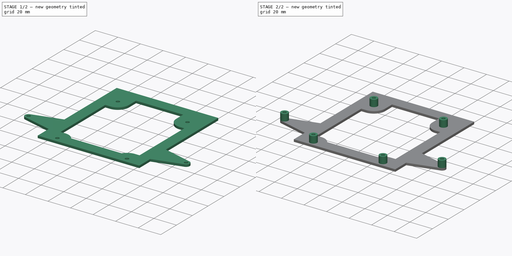
[diagram: build sequence overview — one tinted view per stage of 2, left to right]
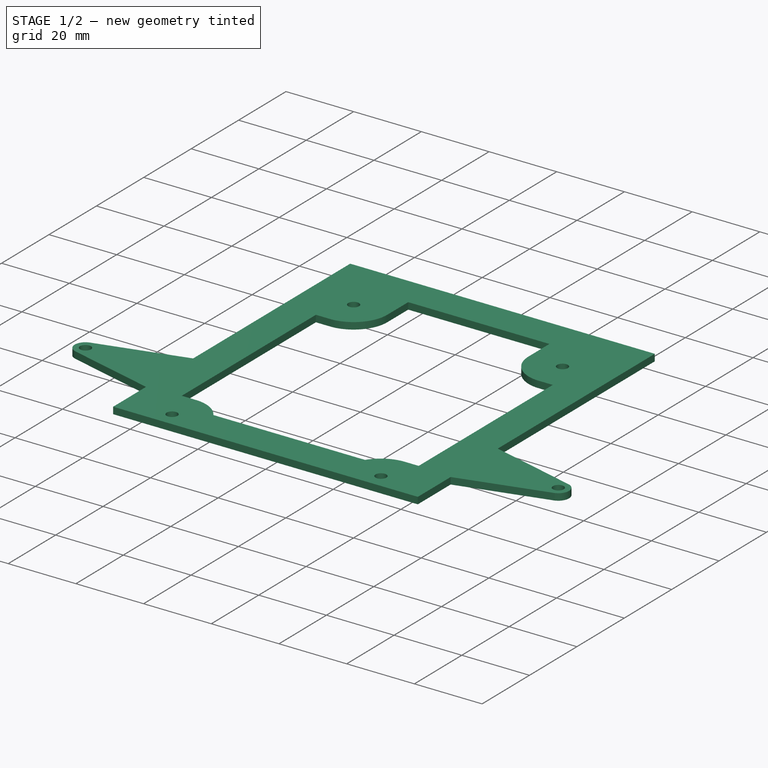
[diagram: stage 1 of 2 — iso view after this stage's code; geometry added in this stage tinted green]
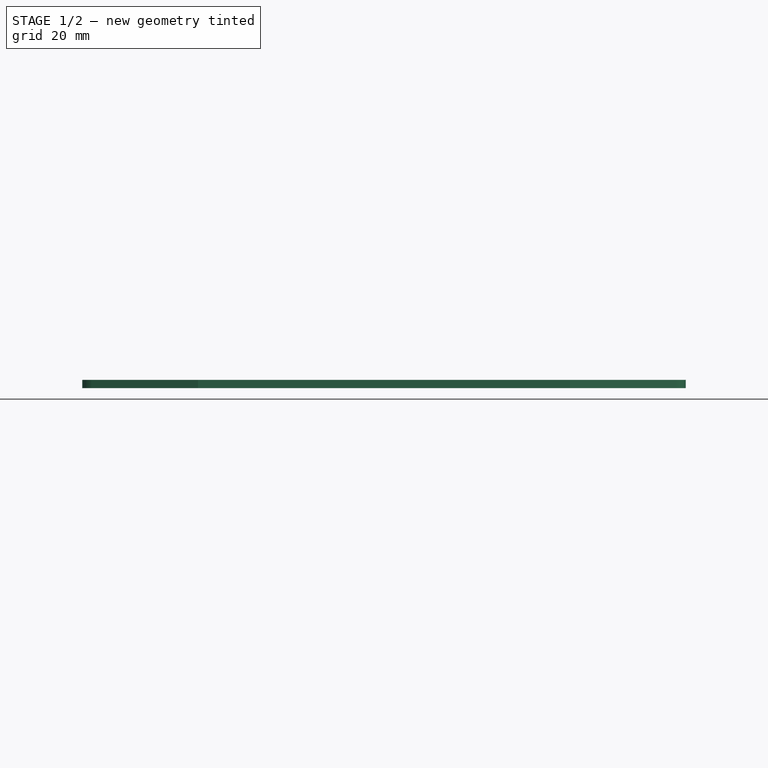
[diagram: stage 1 of 2 — front view after this stage's code; geometry added in this stage tinted green]
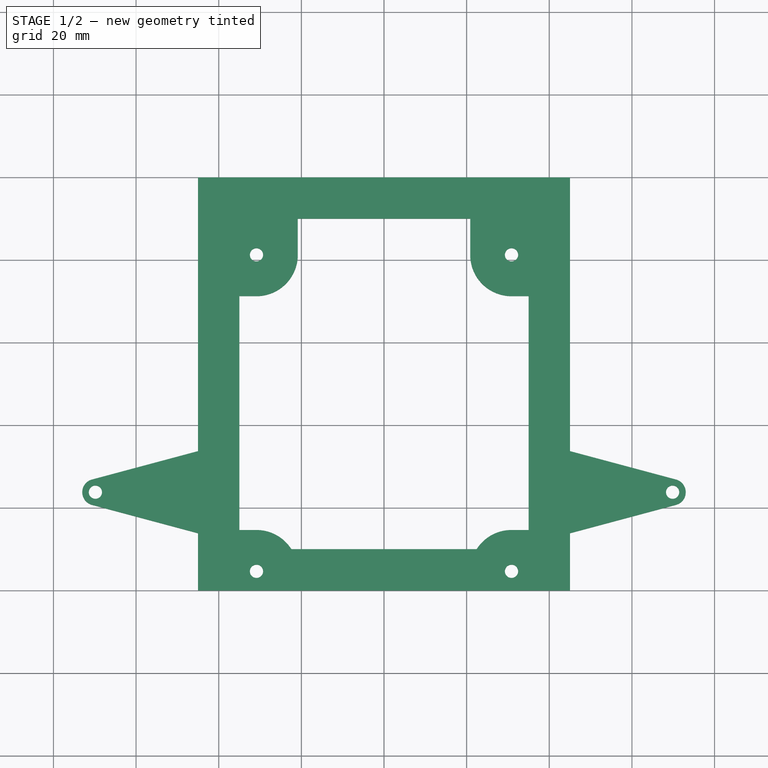
[diagram: stage 1 of 2 — top view after this stage's code; geometry added in this stage tinted green]
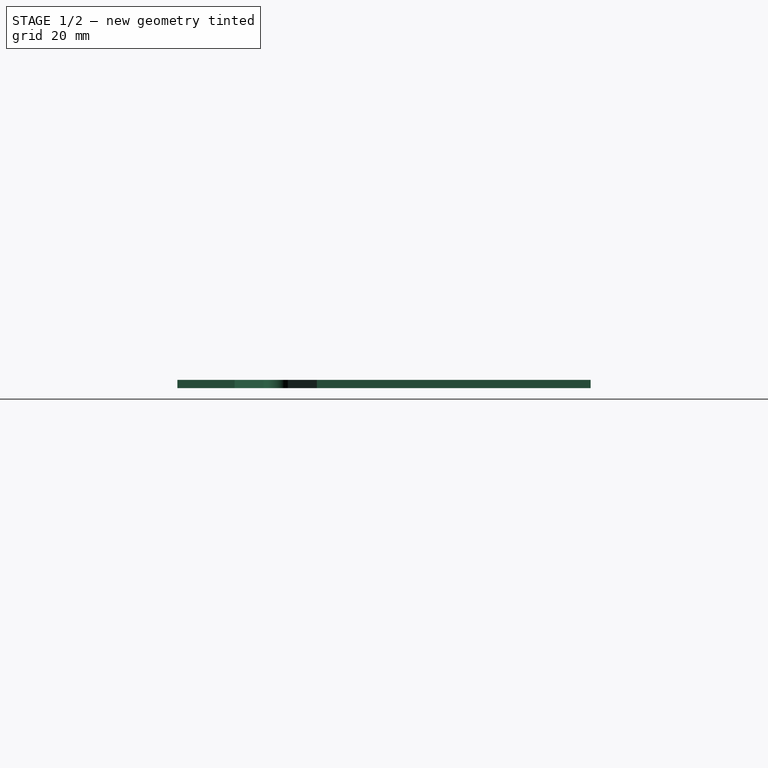
[diagram: stage 1 of 2 — right view after this stage's code; geometry added in this stage tinted green]
FCSTD DOCUMENT  (FreeCAD 0.17R13541 (Git))
Label: SCSI2SD_Mount
License: All rights reserved
LicenseURL: http://en.wikipedia.org/wiki/All_rights_reserved
objects: Sketcher::SketchObject×4, PartDesign::Pad×2, PartDesign::Body×1
note: 9 computed .brp shape members not serialized (recipe doc carries the construction recipe); baked Part::Feature solids carry a one-line shape summary decoded from their .brp

FEATURE [Sketcher::SketchObject] Sketch  label="SCSI2SD_Dimensions"
  MapMode = 5
  Support = -> [XY_Plane]
  sketch-geometry (12):
    g0: Circle CenterX=-30.86 CenterY=-18.75 CenterZ=0 NormalX=0 NormalY=0 NormalZ=1 AngleXU=0 Radius=1.6
    g1: Circle CenterX=-30.86 CenterY=-95.35 CenterZ=0 NormalX=0 NormalY=0 NormalZ=1 AngleXU=0 Radius=1.6
    g2: Circle CenterX=30.86 CenterY=-95.35 CenterZ=0 NormalX=0 NormalY=0 NormalZ=1 AngleXU=0 Radius=1.6
    g3: Circle CenterX=30.86 CenterY=-18.75 CenterZ=0 NormalX=0 NormalY=0 NormalZ=1 AngleXU=0 Radius=1.6
    g4: LineSegment [constr] StartX=-30.86 StartY=-18.75 StartZ=0 EndX=30.86 EndY=-18.75 EndZ=0
    g5: LineSegment [constr] StartX=30.86 StartY=-18.75 StartZ=0 EndX=30.86 EndY=-95.35 EndZ=0
    g6: LineSegment [constr] StartX=30.86 StartY=-95.35 StartZ=0 EndX=-30.86 EndY=-95.35 EndZ=0
    g7: LineSegment [constr] StartX=-30.86 StartY=-95.35 StartZ=0 EndX=-30.86 EndY=-18.75 EndZ=0
    g8: LineSegment StartX=-45 StartY=0 StartZ=0 EndX=45 EndY=0 EndZ=0
    g9: LineSegment StartX=45 StartY=0 StartZ=0 EndX=45 EndY=-100 EndZ=0
    g10: LineSegment StartX=45 StartY=-100 StartZ=0 EndX=-45 EndY=-100 EndZ=0
    g11: LineSegment StartX=-45 StartY=-100 StartZ=0 EndX=-45 EndY=0 EndZ=0
  constraints (31):
    c: Coincident(g4,g5)
    c: Coincident(g5,g6)
    c: Coincident(g6,g7)
    c: Coincident(g7,g4)
    c: Horizontal(g4)
    c: Horizontal(g6)
    c: Vertical(g5)
    c: Vertical(g7)
    c: Coincident(g4,g0)
    c: Coincident(g5,g2)
    c: Coincident(g3,g4)
    c: Coincident(g1,g6)
    c: DistanceY(g5,g5) = 76.6
    c: DistanceX(g4,g4) = 61.72
    c: Equal(g0,g3)
    c: Equal(g3,g2)
    c: Equal(g2,g1)
    c: Radius(g0) = 1.6  'SCSI2SD_Screw_ID'
    c: Coincident(g9,g10)
    c: Coincident(g10,g11)
    c: Coincident(g11,g8)
    c: Horizontal(g8)
    c: Horizontal(g10)
    c: Vertical(g9)
    c: Vertical(g11)
    c: DistanceX(g8,g8) = 90  'Width'
    c: DistanceY(g9,g9) = 100  'Length'
    c: DistanceY(g3,g8) = 18.75
    c: DistanceX(g10,g1) = 14.14
    c: Coincident(g9,g8)
    c: Symmetric(g8,g8,g-1)
FEATURE [Sketcher::SketchObject] Sketch001  label="SCSI_Dimensions"
  MapMode = 5
  Support = -> [XY_Plane]
  sketch-geometry (14):
    g0: LineSegment StartX=73.025 StartY=0 StartZ=0 EndX=-73.025 EndY=0 EndZ=0
    g1: LineSegment StartX=-73.025 StartY=0 StartZ=0 EndX=-73.025 EndY=-203 EndZ=0
    g2: LineSegment StartX=-73.025 StartY=-203 StartZ=0 EndX=73.025 EndY=-203 EndZ=0
    g3: LineSegment StartX=73.025 StartY=-203 StartZ=0 EndX=73.025 EndY=0 EndZ=0
    g4: LineSegment [constr] StartX=-69.85 StartY=-76.2 StartZ=0 EndX=69.85 EndY=-76.2 EndZ=0
    g5: LineSegment [constr] StartX=69.85 StartY=-76.2 StartZ=0 EndX=69.85 EndY=-155.5 EndZ=0
    g6: LineSegment [constr] StartX=69.85 StartY=-155.5 StartZ=0 EndX=-69.85 EndY=-155.5 EndZ=0
    g7: LineSegment [constr] StartX=-69.85 StartY=-155.5 StartZ=0 EndX=-69.85 EndY=-76.2 EndZ=0
    g8: Circle CenterX=-69.85 CenterY=-76.2 CenterZ=0 NormalX=0 NormalY=0 NormalZ=1 AngleXU=0 Radius=1.6
    g9: Circle CenterX=69.85 CenterY=-76.2 CenterZ=0 NormalX=0 NormalY=0 NormalZ=1 AngleXU=0 Radius=1.6
    g10: Circle CenterX=69.85 CenterY=-155.5 CenterZ=0 NormalX=0 NormalY=0 NormalZ=1 AngleXU=0 Radius=1.6
    g11: Circle CenterX=-69.85 CenterY=-155.5 CenterZ=0 NormalX=0 NormalY=0 NormalZ=1 AngleXU=0 Radius=1.6
    g12: LineSegment [constr] StartX=69.85 StartY=-76.2 StartZ=0 EndX=73.025 EndY=-76.2 EndZ=0
    g13: LineSegment [constr] StartX=-69.85 StartY=-76.2 StartZ=0 EndX=-73.025 EndY=-76.2 EndZ=0
  constraints (38):
    c: Coincident(g0,g1)
    c: Coincident(g1,g2)
    c: Coincident(g2,g3)
    c: Horizontal(g0)
    c: Horizontal(g2)
    c: Vertical(g1)
    c: Vertical(g3)
    c: DistanceY(g3,g3) = 203  'Length'
    c: DistanceX(g0,g0) = 146.05  'Width'
    c: Coincident(g4,g5)
    c: Coincident(g5,g6)
    c: Coincident(g6,g7)
    c: Coincident(g7,g4)
    c: Horizontal(g4)
    c: Horizontal(g6)
    c: Vertical(g5)
    c: Vertical(g7)
    c: Coincident(g8,g4)
    c: Coincident(g9,g4)
    c: Coincident(g10,g5)
    c: Coincident(g11,g6)
    c: Equal(g8,g9)
    c: Equal(g9,g10)
    c: Equal(g10,g11)
    c: Radius(g8) = 1.6  'Screw_ID'
    c: DistanceX(g4,g4) = 139.7
    c: DistanceY(g5,g5) = 79.3
    c: DistanceY(g2,g5) = 47.5
    c: Coincident(g12,g4)
    c: PointOnObject(g12,g3)
    c: Horizontal(g12)
    c: Coincident(g13,g4)
    c: PointOnObject(g13,g1)
    c: Horizontal(g13)
    c: Equal(g13,g12)
    c: Coincident(g0,g3)
    c: Symmetric(g0,g0,g-1)
    c: DistanceX(g1,g6) = 3.175  'Screw_Hole_Offset'
FEATURE [Sketcher::SketchObject] Sketch002  label="Plate_Sketch"
  ExternalGeometry = -> [Sketch,Sketch001]
  MapMode = 2
  Placement = pos=(0,0,6) rot=(0,0,1;0rad)
  expr: Constraints[27] = Constraints.Wing_Angle
  expr: Constraints[70] = Constraints.Frame_Rim
  expr: Constraints[15] = SCSI_Dimensions.Constraints.Screw_Hole_Offset
  expr: Constraints[71] = Constraints.Frame_Rim
  expr: Constraints[75] = Constraints.Frame_Rim
  expr: Constraints[69] = Constraints.Frame_Rim
  sketch-geometry (32):
    g0: LineSegment StartX=-45 StartY=0 StartZ=0 EndX=45 EndY=0 EndZ=0
    g1: LineSegment StartX=-45 StartY=-100 StartZ=0 EndX=45 EndY=-100 EndZ=0
    g2: ArcOfCircle CenterX=-69.85 CenterY=-76.2 CenterZ=0 NormalX=0 NormalY=0 NormalZ=1 AngleXU=0 Radius=3.175 StartAngle=1.8326 EndAngle=4.45059
    g3: ArcOfCircle CenterX=69.85 CenterY=-76.2 CenterZ=0 NormalX=0 NormalY=0 NormalZ=1 AngleXU=0 Radius=3.175 StartAngle=4.97419 EndAngle=7.59218
    g4: LineSegment StartX=45 StartY=0 StartZ=0 EndX=45 EndY=-66.2545 EndZ=0
    g5: LineSegment StartX=-45 StartY=0 StartZ=0 EndX=-45 EndY=-66.2545 EndZ=0
    g6: LineSegment StartX=-45 StartY=-86.1455 StartZ=0 EndX=-70.6718 EndY=-79.2668 EndZ=0
    g7: LineSegment StartX=-70.6718 StartY=-73.1332 StartZ=0 EndX=-45 EndY=-66.2545 EndZ=0
    g8: LineSegment StartX=45 StartY=-66.2545 StartZ=0 EndX=70.6718 EndY=-73.1332 EndZ=0
    g9: LineSegment StartX=70.6718 StartY=-79.2668 StartZ=0 EndX=45 EndY=-86.1455 EndZ=0
    g10: LineSegment StartX=-45 StartY=-100 StartZ=0 EndX=-45 EndY=-86.1455 EndZ=0
    g11: LineSegment StartX=45 StartY=-100 StartZ=0 EndX=45 EndY=-86.1455 EndZ=0
    g12: Circle CenterX=-69.85 CenterY=-76.2 CenterZ=0 NormalX=0 NormalY=0 NormalZ=1 AngleXU=0 Radius=1.6
    g13: Circle CenterX=69.85 CenterY=-76.2 CenterZ=0 NormalX=0 NormalY=0 NormalZ=1 AngleXU=0 Radius=1.6
    g14: Circle CenterX=-30.86 CenterY=-18.75 CenterZ=0 NormalX=0 NormalY=0 NormalZ=1 AngleXU=0 Radius=1.6
    g15: Circle CenterX=30.86 CenterY=-18.75 CenterZ=0 NormalX=0 NormalY=0 NormalZ=1 AngleXU=0 Radius=1.6
    g16: Circle CenterX=30.86 CenterY=-95.35 CenterZ=0 NormalX=0 NormalY=0 NormalZ=1 AngleXU=0 Radius=1.6
    g17: Circle CenterX=-30.86 CenterY=-95.35 CenterZ=0 NormalX=0 NormalY=0 NormalZ=1 AngleXU=0 Radius=1.6
    g18: LineSegment StartX=-20.86 StartY=-10 StartZ=0 EndX=20.86 EndY=-10 EndZ=0
    g19: LineSegment StartX=-35 StartY=-28.75 StartZ=0 EndX=-35 EndY=-85.35 EndZ=0
    g20: LineSegment StartX=-22.4115 StartY=-90 StartZ=0 EndX=22.4115 EndY=-90 EndZ=0
    g21: LineSegment StartX=35 StartY=-85.35 StartZ=0 EndX=35 EndY=-28.75 EndZ=0
    g22: LineSegment StartX=-20.86 StartY=-10 StartZ=0 EndX=-20.86 EndY=-18.75 EndZ=0
    g23: LineSegment StartX=-35 StartY=-28.75 StartZ=0 EndX=-30.86 EndY=-28.75 EndZ=0
    g24: LineSegment StartX=35 StartY=-28.75 StartZ=0 EndX=30.86 EndY=-28.75 EndZ=0
    g25: ArcOfCircle CenterX=-30.86 CenterY=-18.75 CenterZ=0 NormalX=0 NormalY=0 NormalZ=1 AngleXU=0 Radius=10 StartAngle=4.71239 EndAngle=6.28319
    g26: LineSegment StartX=20.86 StartY=-10 StartZ=0 EndX=20.86 EndY=-18.75 EndZ=0
    g27: ArcOfCircle CenterX=30.86 CenterY=-18.75 CenterZ=0 NormalX=0 NormalY=0 NormalZ=1 AngleXU=0 Radius=10 StartAngle=3.14159 EndAngle=4.71239
    g28: LineSegment StartX=-35 StartY=-85.35 StartZ=0 EndX=-30.86 EndY=-85.35 EndZ=0
    g29: LineSegment StartX=35 StartY=-85.35 StartZ=0 EndX=30.86 EndY=-85.35 EndZ=0
    g30: ArcOfCircle CenterX=-30.86 CenterY=-95.35 CenterZ=0 NormalX=0 NormalY=0 NormalZ=1 AngleXU=0 Radius=10 StartAngle=0.564508 EndAngle=1.5708
    g31: ArcOfCircle CenterX=30.86 CenterY=-95.35 CenterZ=0 NormalX=0 NormalY=0 NormalZ=1 AngleXU=0 Radius=10 StartAngle=1.5708 EndAngle=2.57708
  constraints (77):
    c: Coincident(g0,g-4)
    c: Coincident(g0,g-4)
    c: Horizontal(g1)
    c: Coincident(g2,g-5)
    c: Coincident(g3,g-6)
    c: Coincident(g4,g0)
    c: Vertical(g4)
    c: Coincident(g5,g0)
    c: Vertical(g5)
    c: Coincident(g7,g5)
    c: Coincident(g8,g4)
    c: Tangent(g6,g2) = 1.5708
    c: Tangent(g9,g3) = 1.5708
    c: Tangent(g7,g2) = 1.5708
    c: Tangent(g8,g3) = 1.5708
    c: Radius(g2) = 3.175
    c: Equal(g2,g3)
    c: Coincident(g1,g-3)
    c: Coincident(g-3,g1)
    c: Angle(g6,g7) = 0.523599  'Wing_Angle'
    c: Coincident(g10,g1)
    c: Coincident(g10,g6)
    c: Coincident(g11,g1)
    c: Coincident(g11,g9)
    c: Vertical(g11)
    c: Vertical(g10)
    c: Equal(g7,g6)
    c: Angle(g8,g9) = 0.523599
    c: Equal(g9,g8)
    c: Coincident(g12,g2)
    c: Coincident(g13,g3)
    c: Equal(g12,g-5)
    c: Equal(g-6,g13)
    c: Coincident(g14,g-9)
    c: Coincident(g15,g-8)
    c: Coincident(g16,g-7)
    c: Coincident(g17,g-10)
    c: Equal(g17,g-10)
    c: Equal(g14,g-9)
    c: Equal(g15,g-8)
    c: Equal(g16,g-7)
    c: Horizontal(g18)
    c: Vertical(g19)
    c: Horizontal(g20)
    c: Vertical(g21)
    c: Coincident(g22,g18)
    c: Vertical(g22)
    c: Coincident(g23,g19)
    c: Horizontal(g23)
    c: Coincident(g24,g21)
    c: Horizontal(g24)
    c: Coincident(g25,g14)
    c: Tangent(g25,g23) = -1.5708
    c: Coincident(g26,g18)
    c: Vertical(g26)
    c: Coincident(g27,g15)
    c: Tangent(g27,g24) = 1.5708
    c: Tangent(g27,g26) = -1.5708
    c: Coincident(g28,g19)
    c: Horizontal(g28)
    c: Coincident(g29,g21)
    c: Horizontal(g29)
    c: Coincident(g30,g17)
    c: Coincident(g30,g20)
    c: Tangent(g28,g30) = 1.5708
    c: Coincident(g31,g16)
    c: Coincident(g31,g20)
    c: Tangent(g31,g29) = -1.5708
    c: DistanceX(g21,g1) = 10  'Frame_Rim'
    c: DistanceY(g1,g20) = 10
    c: DistanceX(g1,g19) = 10
    c: DistanceY(g18,g0) = 10
    c: Equal(g25,g27)
    c: Equal(g27,g31)
    c: Equal(g31,g30)
    c: Radius(g27) = 10
    c: Tangent(g25,g22) = 1.5708
FEATURE [PartDesign::Pad] Pad  label="Plate"
  Length = 2
  Length2 = 100
  Placement = pos=(0,0,6) rot=(0,0,1;0rad)
  Profile = -> Sketch002
  Type = 0
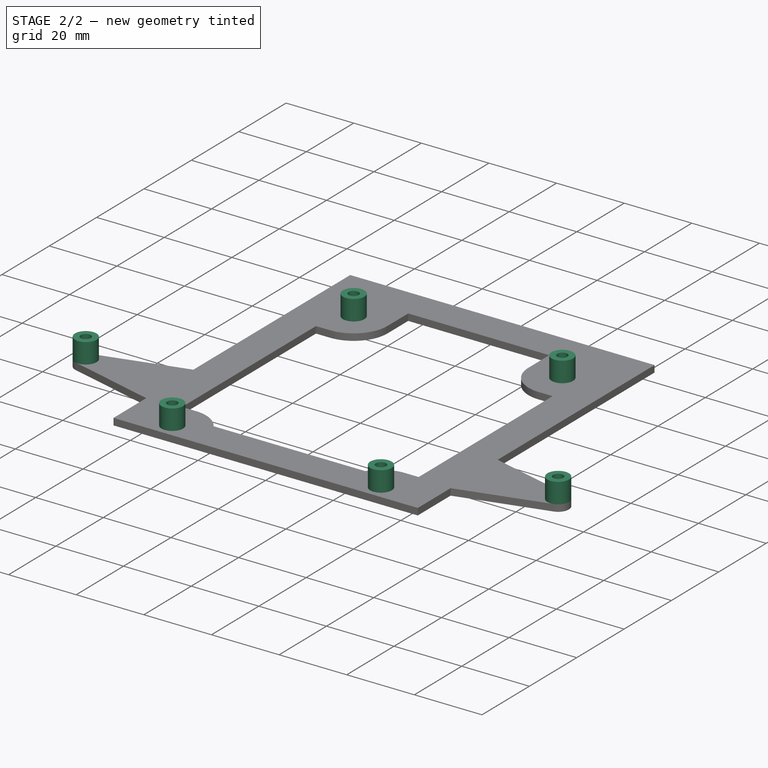
[diagram: stage 2 of 2 — iso view after this stage's code; geometry added in this stage tinted green]
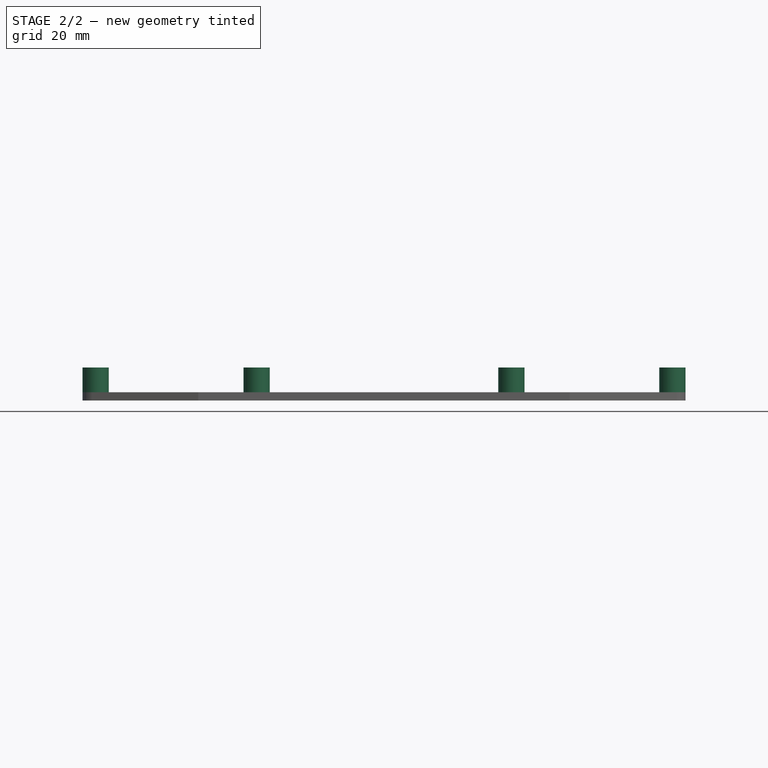
[diagram: stage 2 of 2 — front view after this stage's code; geometry added in this stage tinted green]
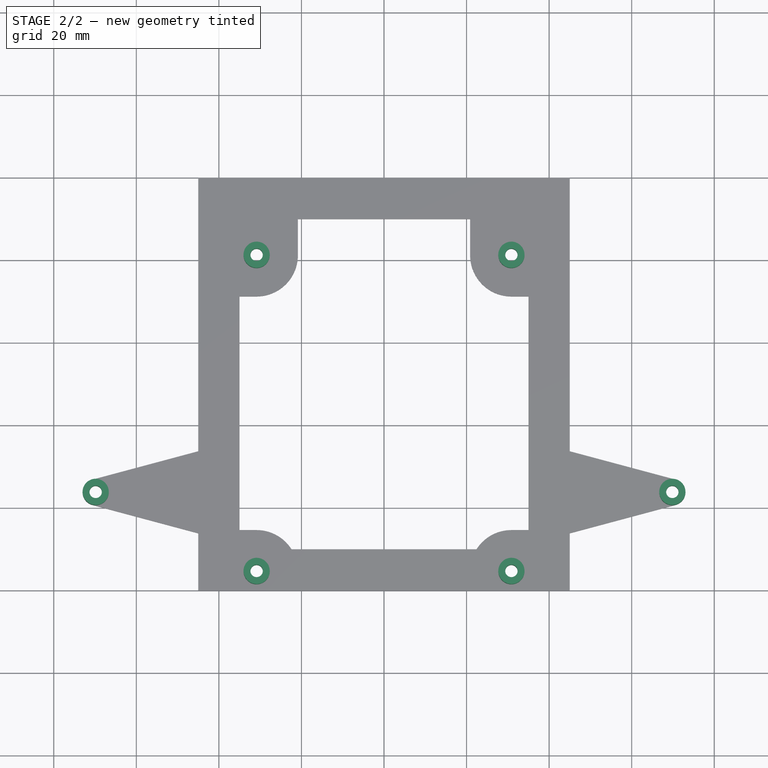
[diagram: stage 2 of 2 — top view after this stage's code; geometry added in this stage tinted green]
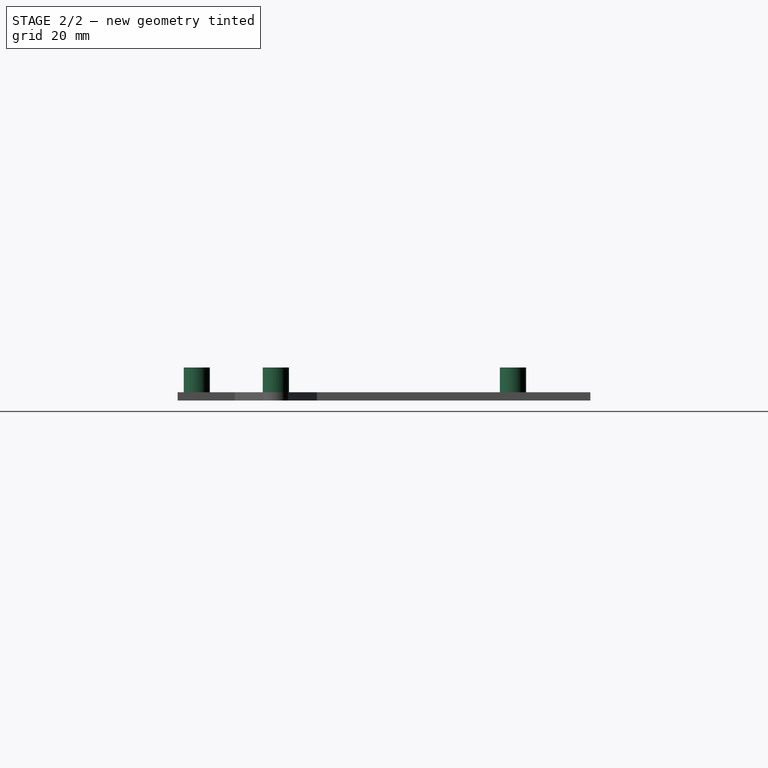
[diagram: stage 2 of 2 — right view after this stage's code; geometry added in this stage tinted green]
FEATURE [Sketcher::SketchObject] Sketch003  label="Screw_Towers_Sketch"
  ExternalGeometry = -> [Pad]
  MapMode = 2
  Placement = pos=(0,0,6) rot=(0,0,1;0rad)
  Support = -> [Pad]
  sketch-geometry (12):
    g0: Circle CenterX=-69.85 CenterY=-76.2 CenterZ=0 NormalX=0 NormalY=0 NormalZ=1 AngleXU=0 Radius=1.6
    g1: Circle CenterX=-69.85 CenterY=-76.2 CenterZ=0 NormalX=0 NormalY=0 NormalZ=1 AngleXU=0 Radius=3.175
    g2: Circle CenterX=30.86 CenterY=-18.75 CenterZ=0 NormalX=0 NormalY=0 NormalZ=1 AngleXU=0 Radius=1.6
    g3: Circle CenterX=30.86 CenterY=-18.75 CenterZ=0 NormalX=0 NormalY=0 NormalZ=1 AngleXU=0 Radius=3.175
    g4: Circle CenterX=69.85 CenterY=-76.2 CenterZ=0 NormalX=0 NormalY=0 NormalZ=1 AngleXU=0 Radius=1.6
    g5: Circle CenterX=69.85 CenterY=-76.2 CenterZ=0 NormalX=0 NormalY=0 NormalZ=1 AngleXU=0 Radius=3.175
    g6: Circle CenterX=-30.86 CenterY=-95.35 CenterZ=0 NormalX=0 NormalY=0 NormalZ=1 AngleXU=0 Radius=1.6
    g7: Circle CenterX=-30.86 CenterY=-95.35 CenterZ=0 NormalX=0 NormalY=0 NormalZ=1 AngleXU=0 Radius=3.175
    g8: Circle CenterX=-69.85 CenterY=-76.2 CenterZ=0 NormalX=0 NormalY=0 NormalZ=1 AngleXU=0 Radius=3.175
    g9: Circle CenterX=-69.85 CenterY=-76.2 CenterZ=0 NormalX=0 NormalY=0 NormalZ=1 AngleXU=0 Radius=1.6
    g10: Circle CenterX=-30.86 CenterY=-18.75 CenterZ=0 NormalX=0 NormalY=0 NormalZ=1 AngleXU=0 Radius=3.175
    g11: Circle CenterX=-30.86 CenterY=-18.75 CenterZ=0 NormalX=0 NormalY=0 NormalZ=1 AngleXU=0 Radius=1.6
  constraints (24):
    c: Coincident(g0,g-4)
    c: Coincident(g1,g0)
    c: Coincident(g2,g-8)
    c: Coincident(g3,g2)
    c: Coincident(g4,g-9)
    c: Coincident(g5,g4)
    c: Coincident(g6,g-5)
    c: Coincident(g7,g6)
    c: Coincident(g8,g-6)
    c: Coincident(g9,g8)
    c: Coincident(g10,g-7)
    c: Coincident(g10,g11)
    c: Equal(g-8,g2)
    c: Equal(g4,g-9)
    c: Equal(g-5,g6)
    c: Equal(g9,g-6)
    c: Equal(g-3,g0)
    c: Equal(g1,g-4)
    c: Equal(g10,g8)
    c: Equal(g8,g7)
    c: Equal(g7,g5)
    c: Equal(g5,g3)
    c: Equal(g3,g1)
    c: Equal(g11,g-7)
FEATURE [PartDesign::Pad] Pad001  label="Screw_Towers"
  BaseFeature = -> Pad
  Length = 8
  Length2 = 100
  Placement = pos=(0,0,6) rot=(0,0,1;0rad)
  Profile = -> Sketch003
  Type = 0
FEATURE [PartDesign::Body] Body
  Group = -> [Sketch,Sketch001,Sketch002,Pad,Sketch003,Pad001]
  Origin = -> Origin
  Tip = -> Pad001
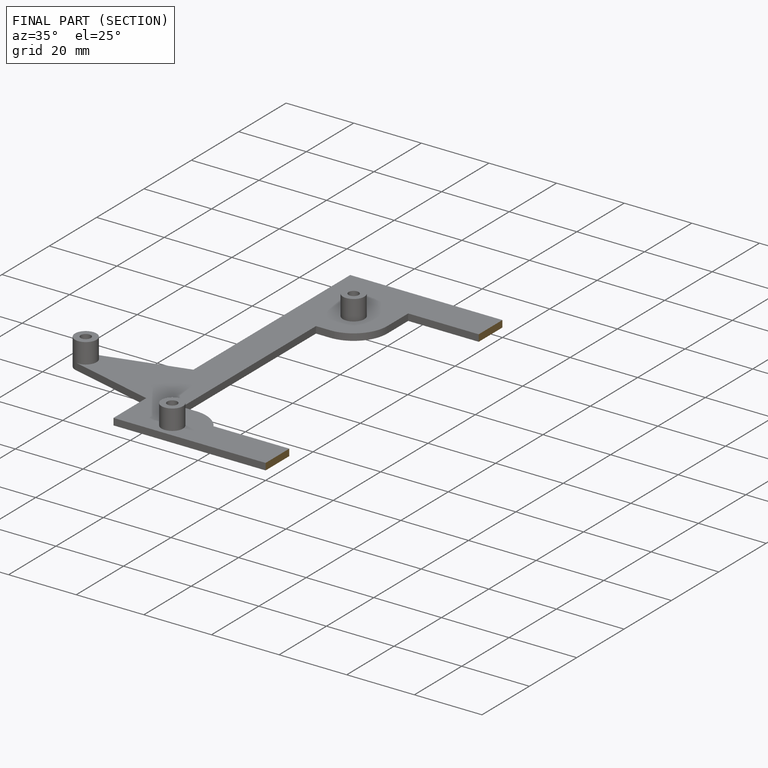
[diagram: finished part — half-section view (interior)]
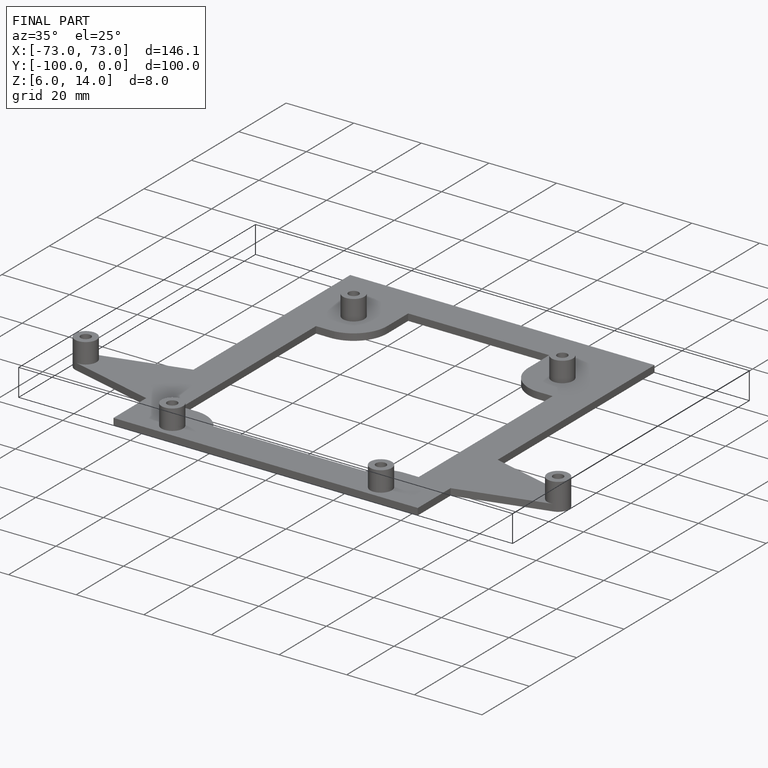
[diagram: finished part — iso view with bounding-box wireframe]
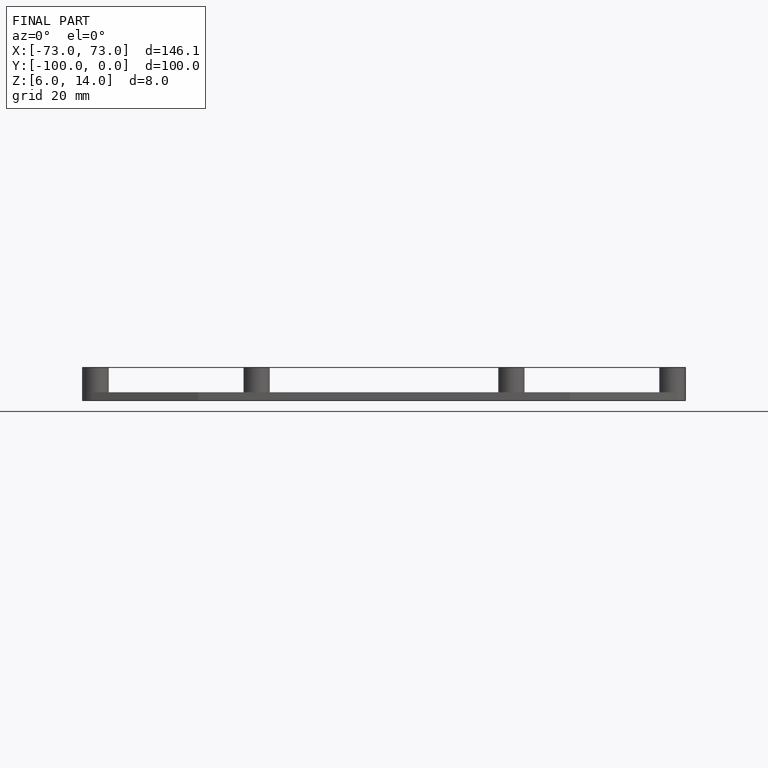
[diagram: finished part — front view with bounding-box wireframe]
